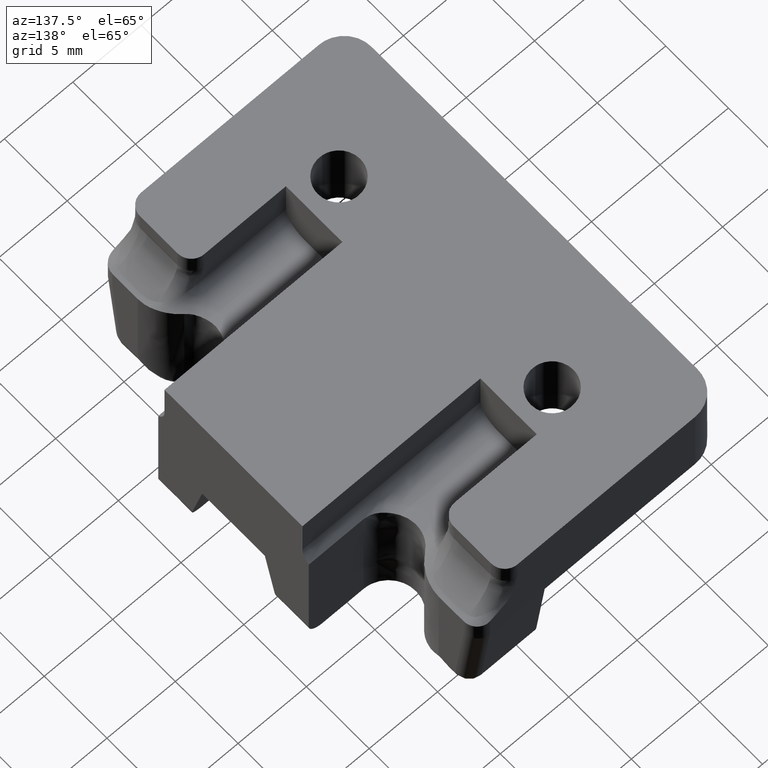
[diagram: clean part render]
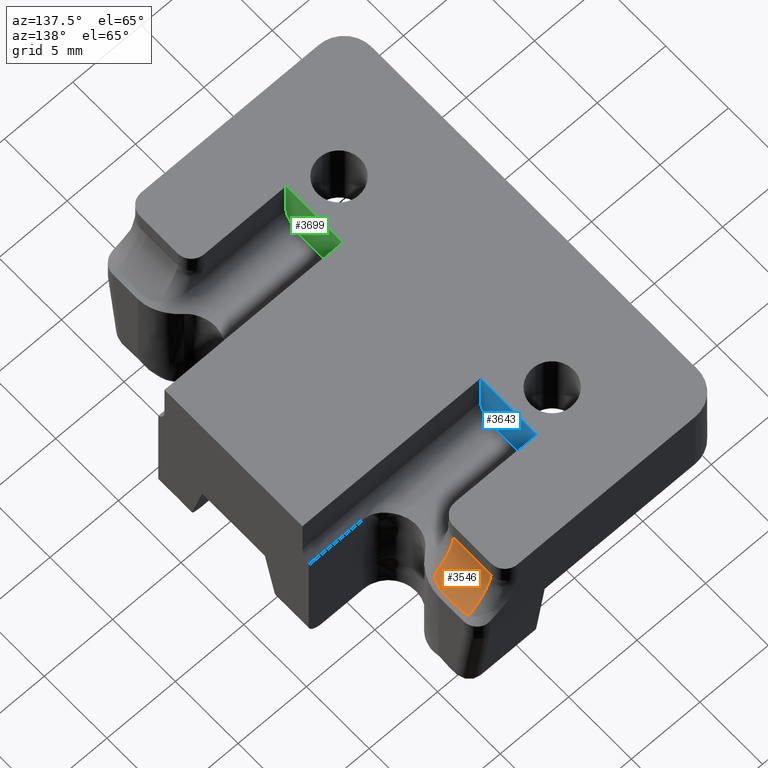
[diagram: same view with three faces highlighted in distinct colors, each labeled with its STEP entity id]
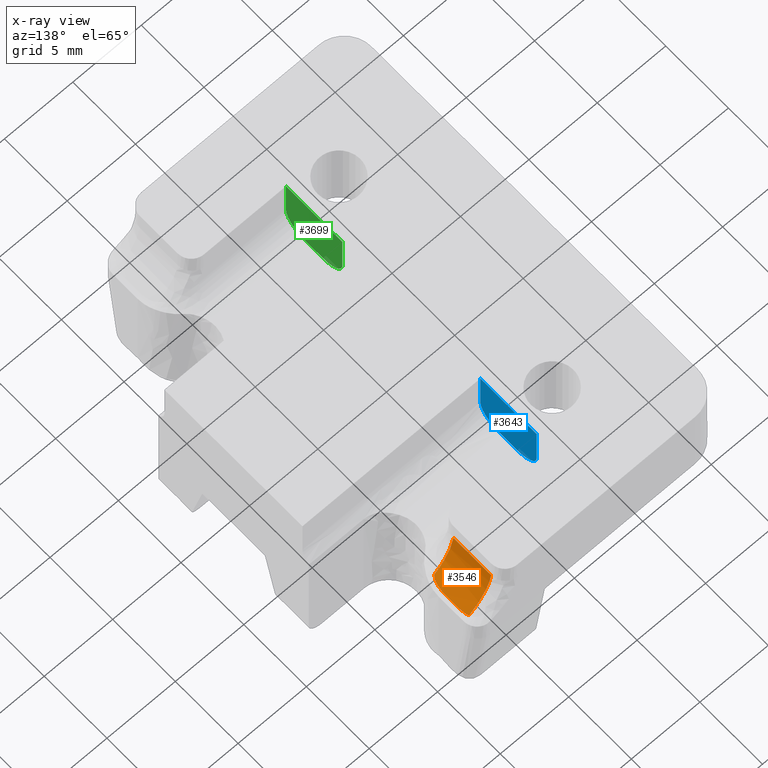
[diagram: x-ray of the same camera — body ghosted, the three highlighted faces saturated]
A machine part, auxiliary view with three faces highlighted in distinct colors.
The next image is the same camera in x-ray (body ghosted, the three faces saturated) — at least one of them is partly hidden behind the body in this view.
Their STEP definitions:

[orange] entity #3546 — the highlighted face is a freeform B-spline surface patch.
#872=CARTESIAN_POINT('',(-171.293859267654510,5.289709380632081,40.129268075578203));
#873=VERTEX_POINT('',#872);
#900=CARTESIAN_POINT('',(-171.330584050755990,5.715891061133929,40.155593585540913));
#901=VERTEX_POINT('',#900);
#915=CARTESIAN_POINT('',(-171.293859267654510,5.289709380632081,40.129268075578203));
#916=CARTESIAN_POINT('',(-171.293859267654710,5.361538123852409,40.129268075578338));
#917=CARTESIAN_POINT('',(-171.300076395756010,5.432559260213843,40.133669303417328));
#918=CARTESIAN_POINT('',(-171.315008430111900,5.574270817265145,40.144341223344583));
#919=CARTESIAN_POINT('',(-171.323701581340090,5.644963691824128,40.150602538770613));
#920=CARTESIAN_POINT('',(-171.330584050755990,5.715891061133929,40.155593585540913));
#921=B_SPLINE_CURVE_WITH_KNOTS('',3,(#915,#916,#917,#918,#919,#920),.UNSPECIFIED.,.F.,.U.,(4,2,4),(0.0,0.500000000000000,1.0),.UNSPECIFIED.);
#922=EDGE_CURVE('',#873,#901,#921,.T.);
#947=CARTESIAN_POINT('',(-171.392868920414490,6.0,40.201662933317699));
#948=VERTEX_POINT('',#947);
#962=CARTESIAN_POINT('',(-171.330584050755990,5.715891061133929,40.155593585540913));
#963=CARTESIAN_POINT('',(-171.335333219535100,5.764833675738476,40.159037599900252));
#964=CARTESIAN_POINT('',(-171.343128159863310,5.813266238625506,40.164700834315603));
#965=CARTESIAN_POINT('',(-171.364163875614200,5.908146466123133,40.180179628542263));
#966=CARTESIAN_POINT('',(-171.377565552185190,5.954651588306826,40.190119119270619));
#967=CARTESIAN_POINT('',(-171.392868920414490,6.0,40.201662933317699));
#968=B_SPLINE_CURVE_WITH_KNOTS('',3,(#962,#963,#964,#965,#966,#967),.UNSPECIFIED.,.F.,.U.,(4,2,4),(0.0,0.500000000000000,1.0),.UNSPECIFIED.);
#969=EDGE_CURVE('',#901,#948,#968,.T.);
#989=CARTESIAN_POINT('',(-171.293859267654510,4.120669118375846,40.129268075578203));
#990=VERTEX_POINT('',#989);
#1012=CARTESIAN_POINT('',(-171.293859267654510,4.120669118375846,40.129268075578203));
#1013=CARTESIAN_POINT('',(-171.293859267654510,5.289709380632081,40.129268075578203));
#1014=QUASI_UNIFORM_CURVE('',1,(#1012,#1013),.UNSPECIFIED.,.F.,.U.);
#1015=EDGE_CURVE('',#990,#873,#1014,.T.);
#1040=CARTESIAN_POINT('',(-171.297028045363500,4.018742937892256,40.131515554178598));
#1041=VERTEX_POINT('',#1040);
#1065=CARTESIAN_POINT('',(-171.297028045363500,4.018742937892256,40.131515554178598));
#1066=CARTESIAN_POINT('',(-171.295000143797890,4.052672896615047,40.130075810009437));
#1067=CARTESIAN_POINT('',(-171.293859267655990,4.086644367878909,40.129268075579297));
#1068=CARTESIAN_POINT('',(-171.293859267654510,4.120669118375846,40.129268075578203));
#1069=QUASI_UNIFORM_CURVE('',3,(#1065,#1066,#1067,#1068),.UNSPECIFIED.,.F.,.U.);
#1070=EDGE_CURVE('',#1041,#990,#1069,.T.);
#1123=CARTESIAN_POINT('',(-171.352803739852500,3.581375594110410,40.171820619800698));
#1124=VERTEX_POINT('',#1123);
#1150=CARTESIAN_POINT('',(-171.352803739852500,3.581375594110410,40.171820619800698));
#1151=CARTESIAN_POINT('',(-171.339384894486610,3.653453973286768,40.161951836159567));
#1152=CARTESIAN_POINT('',(-171.327497706812210,3.725843246108763,40.153337124626937));
#1153=CARTESIAN_POINT('',(-171.308533695208210,3.871565688401141,40.139693558201117));
#1154=CARTESIAN_POINT('',(-171.301441707120690,3.944895487101785,40.134649110503830));
#1155=CARTESIAN_POINT('',(-171.297028045363500,4.018742937892256,40.131515554178598));
#1156=B_SPLINE_CURVE_WITH_KNOTS('',3,(#1150,#1151,#1152,#1153,#1154,#1155),.UNSPECIFIED.,.F.,.U.,(4,2,4),(0.0,0.500000000000000,1.0),.UNSPECIFIED.);
#1157=EDGE_CURVE('',#1124,#1041,#1156,.T.);
#1188=CARTESIAN_POINT('',(-171.590336323544510,3.0,40.360395119801751));
#1189=VERTEX_POINT('',#1188);
#1190=CARTESIAN_POINT('',(-171.590336323544510,3.0,40.360395119801751));
#1191=CARTESIAN_POINT('',(-171.562592213204510,3.042106684898165,40.336649942612610));
#1192=CARTESIAN_POINT('',(-171.536282818074110,3.085451070595340,40.314776164783787));
#1193=CARTESIAN_POINT('',(-171.487665791487900,3.175589072366293,40.275214221217659));
#1194=CARTESIAN_POINT('',(-171.465279940737300,3.222275673946795,40.257457808039973));
#1195=CARTESIAN_POINT('',(-171.424914286068800,3.319135867482839,40.225982483208561));
#1196=CARTESIAN_POINT('',(-171.406931799841690,3.369307177149677,40.212260677099593));
#1197=CARTESIAN_POINT('',(-171.375882424405800,3.473371744087148,40.188860834147142));
#1198=CARTESIAN_POINT('',(-171.362927518978810,3.526996430271336,40.179266073049803));
#1199=CARTESIAN_POINT('',(-171.352803739852500,3.581375594110410,40.171820619800698));
#1200=B_SPLINE_CURVE_WITH_KNOTS('',3,(#1190,#1191,#1192,#1193,#1194,#1195,#1196,#1197,#1198,#1199),.UNSPECIFIED.,.F.,.U.,(4,2,2,2,4),(0.0,0.250000000000000,0.500000000000000,0.750000000000000,1.0),.UNSPECIFIED.);
#1201=EDGE_CURVE('',#1189,#1124,#1200,.T.);
#2860=CARTESIAN_POINT('',(-173.0,6.0,43.000000000005500));
#2861=VERTEX_POINT('',#2860);
#2862=CARTESIAN_POINT('',(-171.392868920414490,6.0,40.201662933317699));
#2863=CARTESIAN_POINT('',(-172.793292038099080,6.0,41.258046326538555));
#2864=CARTESIAN_POINT('',(-173.0,6.0,43.000000000005500));
#2872=(BOUNDED_CURVE()B_SPLINE_CURVE(2,(#2862,#2863,#2864),.UNSPECIFIED.,.F.,.U.)CURVE()GEOMETRIC_REPRESENTATION_ITEM()QUASI_UNIFORM_CURVE()RATIONAL_B_SPLINE_CURVE((1.0,0.919806876977967,1.0))REPRESENTATION_ITEM(''));
#2873=EDGE_CURVE('',#948,#2861,#2872,.T.);
#3002=CARTESIAN_POINT('',(-173.0,3.0,43.000000000005500));
#3003=VERTEX_POINT('',#3002);
#3004=CARTESIAN_POINT('',(-173.0,3.0,43.000000000005500));
#3005=CARTESIAN_POINT('',(-172.810715151866480,3.0,41.404873070662013));
#3006=CARTESIAN_POINT('',(-171.590336323544510,3.0,40.360395119801751));
#3014=(BOUNDED_CURVE()B_SPLINE_CURVE(2,(#3004,#3005,#3006),.UNSPECIFIED.,.F.,.U.)CURVE()GEOMETRIC_REPRESENTATION_ITEM()QUASI_UNIFORM_CURVE()RATIONAL_B_SPLINE_CURVE((1.0,0.931457549936218,1.0))REPRESENTATION_ITEM(''));
#3015=EDGE_CURVE('',#3003,#1189,#3014,.T.);
#3517=CARTESIAN_POINT('',(-173.004073128927300,2.924999999999999,43.035653534214077));
#3518=CARTESIAN_POINT('',(-173.004073128927300,6.076875000000001,43.035653534214077));
#3519=CARTESIAN_POINT('',(-172.791216591915630,2.925000000000001,41.097490310538248));
#3520=CARTESIAN_POINT('',(-172.791216591915630,6.076875000000001,41.097490310538248));
#3521=CARTESIAN_POINT('',(-171.155891544945400,2.924999999999999,40.035653892953199));
#3522=CARTESIAN_POINT('',(-171.155891544945400,6.076875000000002,40.035653892953199));
#3530=(BOUNDED_SURFACE()B_SPLINE_SURFACE(1,2,((#3517,#3519,#3521),(#3518,#3520,#3522)),.UNSPECIFIED.,.F.,.F.,.U.)B_SPLINE_SURFACE_WITH_KNOTS((2,2),(3,3),(0.0,3.151875000000005),(0.0,3.702093336880602),.UNSPECIFIED.)GEOMETRIC_REPRESENTATION_ITEM()RATIONAL_B_SPLINE_SURFACE(((1.0,0.903105291206061,0.998965537956639),(1.0,0.903105291206061,0.998965537956639)))REPRESENTATION_ITEM('')SURFACE());
#3531=ORIENTED_EDGE('',*,*,#922,.T.);
#3532=ORIENTED_EDGE('',*,*,#969,.T.);
#3533=ORIENTED_EDGE('',*,*,#2873,.T.);
#3534=CARTESIAN_POINT('',(-173.0,3.0,43.000000000005500));
#3535=CARTESIAN_POINT('',(-173.0,6.0,43.000000000005500));
#3536=QUASI_UNIFORM_CURVE('',1,(#3534,#3535),.UNSPECIFIED.,.F.,.U.);
#3537=EDGE_CURVE('',#3003,#2861,#3536,.T.);
#3538=ORIENTED_EDGE('',*,*,#3537,.F.);
#3539=ORIENTED_EDGE('',*,*,#3015,.T.);
#3540=ORIENTED_EDGE('',*,*,#1201,.T.);
#3541=ORIENTED_EDGE('',*,*,#1157,.T.);
#3542=ORIENTED_EDGE('',*,*,#1070,.T.);
#3543=ORIENTED_EDGE('',*,*,#1015,.T.);
#3544=EDGE_LOOP('',(#3531,#3532,#3533,#3538,#3539,#3540,#3541,#3542,#3543));
#3545=FACE_OUTER_BOUND('',#3544,.T.);
#3546=ADVANCED_FACE('',(#3545),#3530,.F.);

[blue] entity #3643 — the highlighted face is a freeform B-spline surface patch.
#2236=CARTESIAN_POINT('',(-180.0,0.499999999999971,40.0));
#2237=VERTEX_POINT('',#2236);
#2238=CARTESIAN_POINT('',(-180.0,1.999999999999970,41.500000000000000));
#2239=VERTEX_POINT('',#2238);
#2240=CARTESIAN_POINT('',(-180.0,0.499999999999971,40.0));
#2241=CARTESIAN_POINT('',(-179.999999999999910,1.999999999999971,39.999999999999993));
#2242=CARTESIAN_POINT('',(-180.0,1.999999999999972,41.500000000000000));
#2250=(BOUNDED_CURVE()B_SPLINE_CURVE(2,(#2240,#2241,#2242),.UNSPECIFIED.,.F.,.U.)CURVE()GEOMETRIC_REPRESENTATION_ITEM()QUASI_UNIFORM_CURVE()RATIONAL_B_SPLINE_CURVE((1.0,0.707106781186548,1.0))REPRESENTATION_ITEM(''));
#2251=EDGE_CURVE('',#2237,#2239,#2250,.T.);
#2281=CARTESIAN_POINT('',(-180.0,-2.500000000000000,41.500000000000000));
#2282=VERTEX_POINT('',#2281);
#2283=CARTESIAN_POINT('',(-180.0,-1.000000000000028,40.0));
#2284=VERTEX_POINT('',#2283);
#2285=CARTESIAN_POINT('',(-180.0,-2.500000000000000,41.500000000000000));
#2286=CARTESIAN_POINT('',(-179.999999999999910,-2.500000000000028,39.999999999999993));
#2287=CARTESIAN_POINT('',(-180.0,-1.000000000000028,40.0));
#2295=(BOUNDED_CURVE()B_SPLINE_CURVE(2,(#2285,#2286,#2287),.UNSPECIFIED.,.F.,.U.)CURVE()GEOMETRIC_REPRESENTATION_ITEM()QUASI_UNIFORM_CURVE()RATIONAL_B_SPLINE_CURVE((1.0,0.707106781186548,1.0))REPRESENTATION_ITEM(''));
#2296=EDGE_CURVE('',#2282,#2284,#2295,.T.);
#3583=CARTESIAN_POINT('',(-180.0,0.499999999999971,40.0));
#3584=CARTESIAN_POINT('',(-180.0,-1.000000000000028,40.0));
#3585=QUASI_UNIFORM_CURVE('',1,(#3583,#3584),.UNSPECIFIED.,.F.,.U.);
#3586=EDGE_CURVE('',#2237,#2284,#3585,.T.);
#3605=CARTESIAN_POINT('',(-180.0,-2.500000000000000,44.500000000000000));
#3606=VERTEX_POINT('',#3605);
#3607=CARTESIAN_POINT('',(-180.0,-2.500000000000000,41.500000000000000));
#3608=CARTESIAN_POINT('',(-180.0,-2.500000000000000,44.500000000000000));
#3609=QUASI_UNIFORM_CURVE('',1,(#3607,#3608),.UNSPECIFIED.,.F.,.U.);
#3610=EDGE_CURVE('',#2282,#3606,#3609,.T.);
#3620=CARTESIAN_POINT('',(-180.0,2.224774484364733,39.775225008721883));
#3621=CARTESIAN_POINT('',(-180.0,-2.724775087861791,39.775225008721883));
#3622=CARTESIAN_POINT('',(-180.0,2.224774484364733,44.724775111977543));
#3623=CARTESIAN_POINT('',(-180.0,-2.724775087861791,44.724775111977543));
#3624=B_SPLINE_SURFACE_WITH_KNOTS('',1,1,((#3620,#3622),(#3621,#3623)),.UNSPECIFIED.,.F.,.F.,.U.,(2,2),(2,2),(0.0,4.949549572226524),(0.0,4.949550103255661),.UNSPECIFIED.);
#3625=ORIENTED_EDGE('',*,*,#3586,.F.);
#3626=ORIENTED_EDGE('',*,*,#2251,.T.);
#3627=CARTESIAN_POINT('',(-180.0,1.999999999999970,44.500000000000000));
#3628=VERTEX_POINT('',#3627);
#3629=CARTESIAN_POINT('',(-180.0,1.999999999999970,41.500000000000000));
#3630=CARTESIAN_POINT('',(-180.0,1.999999999999970,44.500000000000000));
#3631=QUASI_UNIFORM_CURVE('',1,(#3629,#3630),.UNSPECIFIED.,.F.,.U.);
#3632=EDGE_CURVE('',#2239,#3628,#3631,.T.);
#3633=ORIENTED_EDGE('',*,*,#3632,.T.);
#3634=CARTESIAN_POINT('',(-180.0,1.999999999999970,44.500000000000000));
#3635=CARTESIAN_POINT('',(-180.0,-2.500000000000000,44.500000000000000));
#3636=QUASI_UNIFORM_CURVE('',1,(#3634,#3635),.UNSPECIFIED.,.F.,.U.);
#3637=EDGE_CURVE('',#3628,#3606,#3636,.T.);
#3638=ORIENTED_EDGE('',*,*,#3637,.T.);
#3639=ORIENTED_EDGE('',*,*,#3610,.F.);
#3640=ORIENTED_EDGE('',*,*,#2296,.T.);
#3641=EDGE_LOOP('',(#3625,#3626,#3633,#3638,#3639,#3640));
#3642=FACE_OUTER_BOUND('',#3641,.T.);
#3643=ADVANCED_FACE('',(#3642),#3624,.F.);

[green] entity #3699 — the highlighted face is a freeform B-spline surface patch.
#2376=CARTESIAN_POINT('',(-180.0,-15.0,40.0));
#2377=VERTEX_POINT('',#2376);
#2378=CARTESIAN_POINT('',(-180.0,-13.500000000000000,41.500000000000000));
#2379=VERTEX_POINT('',#2378);
#2380=CARTESIAN_POINT('',(-180.0,-15.0,40.0));
#2381=CARTESIAN_POINT('',(-179.999999999999910,-13.500000000000000,39.999999999999993));
#2382=CARTESIAN_POINT('',(-180.0,-13.500000000000000,41.500000000000000));
#2390=(BOUNDED_CURVE()B_SPLINE_CURVE(2,(#2380,#2381,#2382),.UNSPECIFIED.,.F.,.U.)CURVE()GEOMETRIC_REPRESENTATION_ITEM()QUASI_UNIFORM_CURVE()RATIONAL_B_SPLINE_CURVE((1.0,0.707106781186548,1.0))REPRESENTATION_ITEM(''));
#2391=EDGE_CURVE('',#2377,#2379,#2390,.T.);
#2664=CARTESIAN_POINT('',(-180.0,-18.0,41.500000000000000));
#2665=VERTEX_POINT('',#2664);
#2666=CARTESIAN_POINT('',(-180.0,-16.500000000000000,40.0));
#2667=VERTEX_POINT('',#2666);
#2668=CARTESIAN_POINT('',(-180.0,-18.0,41.500000000000000));
#2669=CARTESIAN_POINT('',(-179.999999999999910,-18.000000000000007,39.999999999999993));
#2670=CARTESIAN_POINT('',(-180.0,-16.500000000000000,40.0));
#2678=(BOUNDED_CURVE()B_SPLINE_CURVE(2,(#2668,#2669,#2670),.UNSPECIFIED.,.F.,.U.)CURVE()GEOMETRIC_REPRESENTATION_ITEM()QUASI_UNIFORM_CURVE()RATIONAL_B_SPLINE_CURVE((1.0,0.707106781186548,1.0))REPRESENTATION_ITEM(''));
#2679=EDGE_CURVE('',#2665,#2667,#2678,.T.);
#3649=CARTESIAN_POINT('',(-180.0,-13.500000000000000,44.500000000000000));
#3650=VERTEX_POINT('',#3649);
#3651=CARTESIAN_POINT('',(-180.0,-13.500000000000000,41.500000000000000));
#3652=CARTESIAN_POINT('',(-180.0,-13.500000000000000,44.500000000000000));
#3653=QUASI_UNIFORM_CURVE('',1,(#3651,#3652),.UNSPECIFIED.,.F.,.U.);
#3654=EDGE_CURVE('',#2379,#3650,#3653,.T.);
#3672=CARTESIAN_POINT('',(-180.0,-18.224775498191491,39.775225008721883));
#3673=CARTESIAN_POINT('',(-180.0,-13.275224863906731,39.775225008721883));
#3674=CARTESIAN_POINT('',(-180.0,-18.224775498191491,44.724775111977543));
#3675=CARTESIAN_POINT('',(-180.0,-13.275224863906731,44.724775111977543));
#3676=B_SPLINE_SURFACE_WITH_KNOTS('',1,1,((#3672,#3674),(#3673,#3675)),.UNSPECIFIED.,.F.,.F.,.U.,(2,2),(2,2),(0.0,4.949550634284764),(0.0,4.949550103255661),.UNSPECIFIED.);
#3677=CARTESIAN_POINT('',(-180.0,-16.500000000000000,40.0));
#3678=CARTESIAN_POINT('',(-180.0,-15.0,40.0));
#3679=QUASI_UNIFORM_CURVE('',1,(#3677,#3678),.UNSPECIFIED.,.F.,.U.);
#3680=EDGE_CURVE('',#2667,#2377,#3679,.T.);
#3681=ORIENTED_EDGE('',*,*,#3680,.T.);
#3682=ORIENTED_EDGE('',*,*,#2391,.T.);
#3683=ORIENTED_EDGE('',*,*,#3654,.T.);
#3684=CARTESIAN_POINT('',(-180.0,-18.0,44.500000000000000));
#3685=VERTEX_POINT('',#3684);
#3686=CARTESIAN_POINT('',(-180.0,-18.0,44.500000000000000));
#3687=CARTESIAN_POINT('',(-180.0,-13.500000000000000,44.500000000000000));
#3688=QUASI_UNIFORM_CURVE('',1,(#3686,#3687),.UNSPECIFIED.,.F.,.U.);
#3689=EDGE_CURVE('',#3685,#3650,#3688,.T.);
#3690=ORIENTED_EDGE('',*,*,#3689,.F.);
#3691=CARTESIAN_POINT('',(-180.0,-18.0,41.500000000000000));
#3692=CARTESIAN_POINT('',(-180.0,-18.0,44.500000000000000));
#3693=QUASI_UNIFORM_CURVE('',1,(#3691,#3692),.UNSPECIFIED.,.F.,.U.);
#3694=EDGE_CURVE('',#2665,#3685,#3693,.T.);
#3695=ORIENTED_EDGE('',*,*,#3694,.F.);
#3696=ORIENTED_EDGE('',*,*,#2679,.T.);
#3697=EDGE_LOOP('',(#3681,#3682,#3683,#3690,#3695,#3696));
#3698=FACE_OUTER_BOUND('',#3697,.T.);
#3699=ADVANCED_FACE('',(#3698),#3676,.T.);